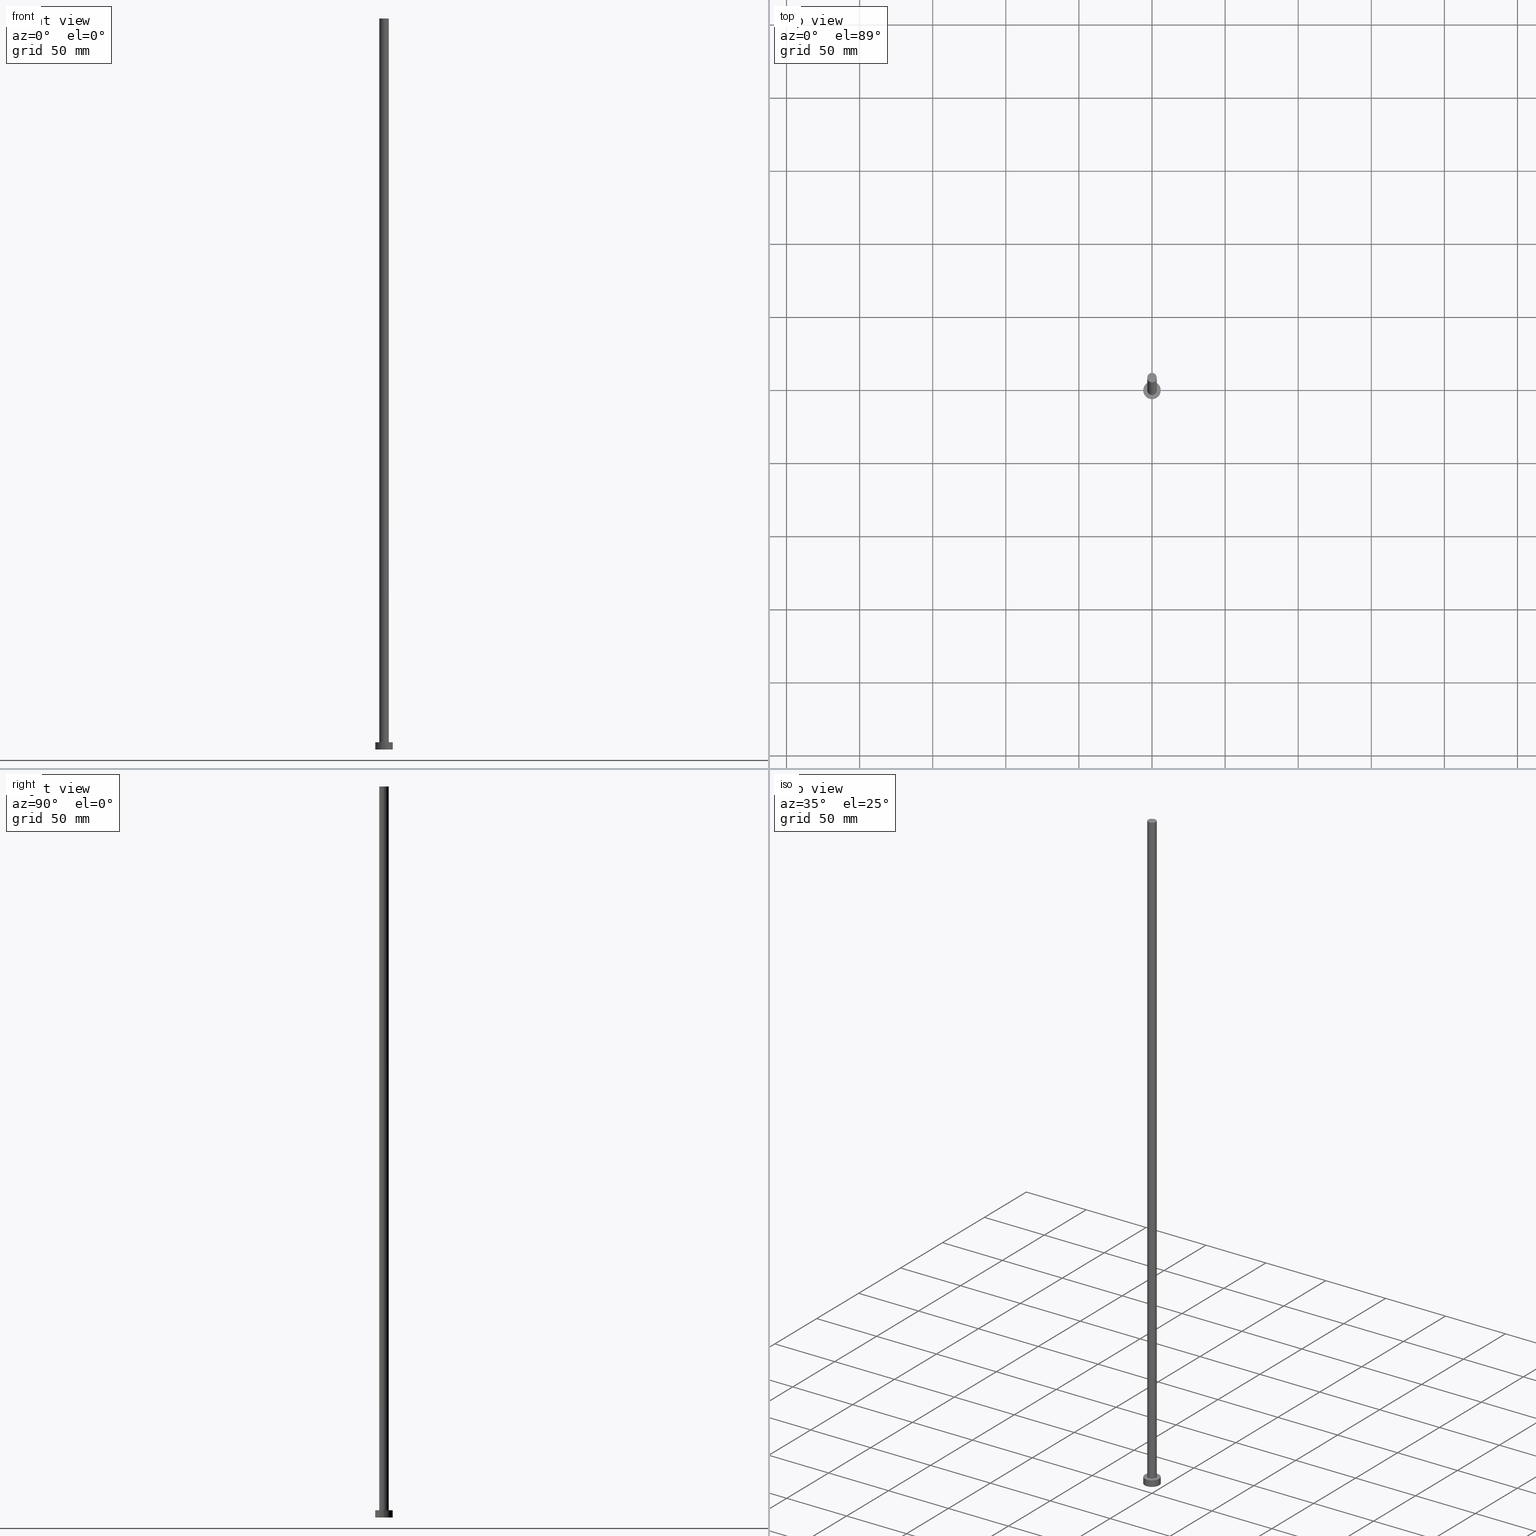
[diagram: canonical four-view strip — front | top / right | iso, engineering-drawing reading convention]
A machine part, canonical four-view strip (front | top / right | iso — engineering-drawing reading convention). The complete STEP part file that produces these views, byte-faithful:
ISO-10303-21;
HEADER;
FILE_DESCRIPTION (( 'STEP AP203' ),
    '1' );
FILE_NAME ('5e20.STEP',
    '2023-02-13T11:47:34',
    ( '' ),
    ( '' ),
    'SwSTEP 2.0',
    'SolidWorks 2019',
    '' );
FILE_SCHEMA (( 'CONFIG_CONTROL_DESIGN' ));
ENDSEC;

DATA;
#1 = ORIENTED_EDGE ( 'NONE', *, *, #48, .T. ) ;
#2 = DIRECTION ( 'NONE',  ( 0.000000000000000000, 0.000000000000000000, 1.000000000000000000 ) ) ;
#3 = VERTEX_POINT ( 'NONE', #56 ) ;
#4 = VERTEX_POINT ( 'NONE', #97 ) ;
#5 = AXIS2_PLACEMENT_3D ( 'NONE', #242, #127, #126 ) ;
#6 = LINE ( 'NONE', #221, #116 ) ;
#7 = CYLINDRICAL_SURFACE ( 'NONE', #249, 6.000000000000000888 ) ;
#8 = CYLINDRICAL_SURFACE ( 'NONE', #5, 6.000000000000000888 ) ;
#9 = CARTESIAN_POINT ( 'NONE',  ( 0.000000000000000000, 0.000000000000000000, 5.000000000000000000 ) ) ;
#10 = CC_DESIGN_DATE_AND_TIME_ASSIGNMENT ( #39, #229, ( #35 ) ) ;
#11 = CIRCLE ( 'NONE', #237, 6.000000000000000888 ) ;
#12 = CC_DESIGN_APPROVAL ( #235, ( #35 ) ) ;
#13 = PERSON_AND_ORGANIZATION ( #72, #113 ) ;
#14 = EDGE_CURVE ( 'NONE', #212, #4, #11, .T. ) ;
#15 = APPROVAL_DATE_TIME ( #55, #85 ) ;
#16 = ORIENTED_EDGE ( 'NONE', *, *, #131, .F. ) ;
#17 = ORIENTED_EDGE ( 'NONE', *, *, #131, .T. ) ;
#18 = AXIS2_PLACEMENT_3D ( 'NONE', #109, #25, #24 ) ;
#19 = ORIENTED_EDGE ( 'NONE', *, *, #48, .F. ) ;
#20 = COORDINATED_UNIVERSAL_TIME_OFFSET ( 1, 0, .AHEAD. ) ;
#21 = EDGE_LOOP ( 'NONE', ( #180, #197 ) ) ;
#22 = DIRECTION ( 'NONE',  ( 1.000000000000000000, 0.000000000000000000, -0.000000000000000000 ) ) ;
#23 = VECTOR ( 'NONE', #172, 1000.000000000000000 ) ;
#24 = DIRECTION ( 'NONE',  ( 1.000000000000000000, 0.000000000000000000, 0.000000000000000000 ) ) ;
#25 = DIRECTION ( 'NONE',  ( 0.000000000000000000, 0.000000000000000000, 1.000000000000000000 ) ) ;
#26 = CC_DESIGN_PERSON_AND_ORGANIZATION_ASSIGNMENT ( #248, #68, ( #75 ) ) ;
#27 = DIRECTION ( 'NONE',  ( 0.000000000000000000, 0.000000000000000000, 1.000000000000000000 ) ) ;
#28 =( LENGTH_UNIT ( ) NAMED_UNIT ( * ) SI_UNIT ( .MILLI., .METRE. ) );
#29 = AXIS2_PLACEMENT_3D ( 'NONE', #149, #204, #240 ) ;
#30 = APPLICATION_PROTOCOL_DEFINITION ( 'international standard', 'config_control_design', 1994, #144 ) ;
#31 = CIRCLE ( 'NONE', #225, 6.000000000000000888 ) ;
#32 = PERSON_AND_ORGANIZATION_ROLE ( 'design_owner' ) ;
#33 = ADVANCED_FACE ( 'NONE', ( #213 ), #161, .T. ) ;
#34 = APPLICATION_CONTEXT ( 'configuration controlled 3d designs of mechanical parts and assemblies' ) ;
#35 = SECURITY_CLASSIFICATION ( '', '', #50 ) ;
#36 = VERTEX_POINT ( 'NONE', #40 ) ;
#37 = VERTEX_POINT ( 'NONE', #103 ) ;
#38 = CC_DESIGN_PERSON_AND_ORGANIZATION_ASSIGNMENT ( #194, #32, ( #166 ) ) ;
#39 = DATE_AND_TIME ( #157, #125 ) ;
#40 = CARTESIAN_POINT ( 'NONE',  ( 3.250000000000000444, 3.980102097228898231E-16, 500.0000000000000000 ) ) ;
#41 = CARTESIAN_POINT ( 'NONE',  ( 0.000000000000000000, 0.000000000000000000, 0.000000000000000000 ) ) ;
#42 = ADVANCED_BREP_SHAPE_REPRESENTATION ( '5e20', ( #217, #53 ), #220 ) ;
#43 = FACE_OUTER_BOUND ( 'NONE', #79, .T. ) ;
#44 = DIRECTION ( 'NONE',  ( -0.000000000000000000, -0.000000000000000000, -1.000000000000000000 ) ) ;
#45 = CC_DESIGN_SECURITY_CLASSIFICATION ( #35, ( #112 ) ) ;
#46 = CARTESIAN_POINT ( 'NONE',  ( 0.000000000000000000, 0.000000000000000000, 500.0000000000000000 ) ) ;
#47 = LINE ( 'NONE', #61, #154 ) ;
#48 = EDGE_CURVE ( 'NONE', #182, #233, #95, .T. ) ;
#49 = APPROVAL_ROLE ( '' ) ;
#50 = SECURITY_CLASSIFICATION_LEVEL ( 'unclassified' ) ;
#51 = COORDINATED_UNIVERSAL_TIME_OFFSET ( 1, 0, .AHEAD. ) ;
#52 = DIRECTION ( 'NONE',  ( 1.000000000000000000, 0.000000000000000000, 0.000000000000000000 ) ) ;
#53 = AXIS2_PLACEMENT_3D ( 'NONE', #227, #224, #250 ) ;
#54 = ORIENTED_EDGE ( 'NONE', *, *, #176, .T. ) ;
#55 = DATE_AND_TIME ( #102, #111 ) ;
#56 = CARTESIAN_POINT ( 'NONE',  ( -3.250000000000000444, 0.000000000000000000, 5.000000000000000000 ) ) ;
#57 = ORIENTED_EDGE ( 'NONE', *, *, #169, .F. ) ;
#58 = CC_DESIGN_APPROVAL ( #85, ( #112 ) ) ;
#59 = ORIENTED_EDGE ( 'NONE', *, *, #108, .F. ) ;
#60 = LINE ( 'NONE', #190, #160 ) ;
#61 = CARTESIAN_POINT ( 'NONE',  ( -6.000000000000000888, 0.000000000000000000, 5.000000000000000000 ) ) ;
#62 = AXIS2_PLACEMENT_3D ( 'NONE', #9, #142, #22 ) ;
#63 = CARTESIAN_POINT ( 'NONE',  ( 0.000000000000000000, 0.000000000000000000, 5.000000000000000000 ) ) ;
#64 = DIRECTION ( 'NONE',  ( 0.000000000000000000, 0.000000000000000000, 1.000000000000000000 ) ) ;
#65 = PRODUCT_DEFINITION_SHAPE ( 'NONE', 'NONE',  #75 ) ;
#66 = CARTESIAN_POINT ( 'NONE',  ( 0.000000000000000000, 0.000000000000000000, 500.0000000000000000 ) ) ;
#67 = EDGE_CURVE ( 'NONE', #37, #36, #145, .T. ) ;
#68 = PERSON_AND_ORGANIZATION_ROLE ( 'creator' ) ;
#69 = MECHANICAL_CONTEXT ( 'NONE', #144, 'mechanical' ) ;
#70 = APPROVAL_DATE_TIME ( #251, #223 ) ;
#71 = APPROVAL_PERSON_ORGANIZATION ( #13, #223, #49 ) ;
#72 = PERSON ( 'NEUR�EN�', 'NEUR�EN�', 'NEUR�EN�', ('NEUR�EN�'), ('NEUR�EN�'), ('NEUR�EN�') ) ;
#73 = DIRECTION ( 'NONE',  ( 1.000000000000000000, 0.000000000000000000, 0.000000000000000000 ) ) ;
#74 = APPROVAL_STATUS ( 'not_yet_approved' ) ;
#75 = PRODUCT_DEFINITION ( 'NEZN�M�', '', #112, #141 ) ;
#76 = CARTESIAN_POINT ( 'NONE',  ( 0.000000000000000000, 0.000000000000000000, 5.000000000000000000 ) ) ;
#77 = AXIS2_PLACEMENT_3D ( 'NONE', #46, #171, #187 ) ;
#78 = ORIENTED_EDGE ( 'NONE', *, *, #155, .F. ) ;
#79 = EDGE_LOOP ( 'NONE', ( #200, #195, #140, #57 ) ) ;
#80 = EDGE_CURVE ( 'NONE', #4, #212, #31, .T. ) ;
#81 = CARTESIAN_POINT ( 'NONE',  ( 0.000000000000000000, 0.000000000000000000, 500.0000000000000000 ) ) ;
#82 = UNCERTAINTY_MEASURE_WITH_UNIT (LENGTH_MEASURE( 1.000000000000000082E-05 ), #28, 'distance_accuracy_value', 'NONE');
#83 = DIRECTION ( 'NONE',  ( 1.000000000000000000, 0.000000000000000000, 0.000000000000000000 ) ) ;
#84 = FACE_OUTER_BOUND ( 'NONE', #21, .T. ) ;
#85 = APPROVAL ( #96, 'NEUR�EN�' ) ;
#86 = FACE_OUTER_BOUND ( 'NONE', #99, .T. ) ;
#87 = APPROVAL_DATE_TIME ( #98, #235 ) ;
#88 = LINE ( 'NONE', #105, #23 ) ;
#89 = CARTESIAN_POINT ( 'NONE',  ( 0.000000000000000000, 0.000000000000000000, 5.000000000000000000 ) ) ;
#90 = APPROVAL_STATUS ( 'not_yet_approved' ) ;
#91 = LOCAL_TIME ( 12, 47, 34.00000000000000000, #151 ) ;
#92 = CALENDAR_DATE ( 2023, 13, 2 ) ;
#93 = ADVANCED_FACE ( 'NONE', ( #132 ), #7, .T. ) ;
#94 =( NAMED_UNIT ( * ) SI_UNIT ( $, .STERADIAN. ) SOLID_ANGLE_UNIT ( ) );
#95 = CIRCLE ( 'NONE', #106, 6.000000000000000888 ) ;
#96 = APPROVAL_STATUS ( 'not_yet_approved' ) ;
#97 = CARTESIAN_POINT ( 'NONE',  ( -6.000000000000000888, 0.000000000000000000, 5.000000000000000000 ) ) ;
#98 = DATE_AND_TIME ( #196, #188 ) ;
#99 = EDGE_LOOP ( 'NONE', ( #19, #115 ) ) ;
#100 = EDGE_LOOP ( 'NONE', ( #234, #159, #54, #1 ) ) ;
#101 = CLOSED_SHELL ( 'NONE', ( #191, #93, #173, #128, #241, #114, #33 ) ) ;
#102 = CALENDAR_DATE ( 2023, 13, 2 ) ;
#103 = CARTESIAN_POINT ( 'NONE',  ( -3.250000000000000444, 0.000000000000000000, 500.0000000000000000 ) ) ;
#104 = DIRECTION ( 'NONE',  ( 0.000000000000000000, 0.000000000000000000, 1.000000000000000000 ) ) ;
#105 = CARTESIAN_POINT ( 'NONE',  ( -3.250000000000000444, 0.000000000000000000, 500.0000000000000000 ) ) ;
#106 = AXIS2_PLACEMENT_3D ( 'NONE', #41, #104, #255 ) ;
#107 = DIRECTION ( 'NONE',  ( 0.000000000000000000, 0.000000000000000000, 1.000000000000000000 ) ) ;
#108 = EDGE_CURVE ( 'NONE', #36, #202, #6, .T. ) ;
#109 = CARTESIAN_POINT ( 'NONE',  ( 0.000000000000000000, 0.000000000000000000, 5.000000000000000000 ) ) ;
#110 = DIRECTION ( 'NONE',  ( 1.000000000000000000, 0.000000000000000000, -0.000000000000000000 ) ) ;
#111 = LOCAL_TIME ( 12, 47, 34.00000000000000000, #20 ) ;
#112 = PRODUCT_DEFINITION_FORMATION_WITH_SPECIFIED_SOURCE ( 'LIBOVOLN�', '', #166, .NOT_KNOWN. ) ;
#113 = ORGANIZATION ( 'NEUR�EN�', 'NEUR�EN�', '' ) ;
#114 = ADVANCED_FACE ( 'NONE', ( #124 ), #203, .T. ) ;
#115 = ORIENTED_EDGE ( 'NONE', *, *, #246, .F. ) ;
#116 = VECTOR ( 'NONE', #167, 1000.000000000000000 ) ;
#117 = PERSON_AND_ORGANIZATION ( #72, #113 ) ;
#118 = ORIENTED_EDGE ( 'NONE', *, *, #67, .T. ) ;
#119 = ORIENTED_EDGE ( 'NONE', *, *, #246, .T. ) ;
#120 = APPROVAL_ROLE ( '' ) ;
#121 = ORIENTED_EDGE ( 'NONE', *, *, #67, .F. ) ;
#122 = EDGE_LOOP ( 'NONE', ( #16, #78 ) ) ;
#123 = CARTESIAN_POINT ( 'NONE',  ( 3.250000000000000444, 3.980102097228898231E-16, 5.000000000000000000 ) ) ;
#124 = FACE_OUTER_BOUND ( 'NONE', #216, .T. ) ;
#125 = LOCAL_TIME ( 12, 47, 34.00000000000000000, #178 ) ;
#126 = DIRECTION ( 'NONE',  ( -1.000000000000000000, 0.000000000000000000, 0.000000000000000000 ) ) ;
#127 = DIRECTION ( 'NONE',  ( -0.000000000000000000, -0.000000000000000000, -1.000000000000000000 ) ) ;
#128 = ADVANCED_FACE ( 'NONE', ( #206, #84 ), #189, .T. ) ;
#129 = DATE_TIME_ROLE ( 'creation_date' ) ;
#130 = PERSON_AND_ORGANIZATION_ROLE ( 'classification_officer' ) ;
#131 = EDGE_CURVE ( 'NONE', #3, #202, #244, .T. ) ;
#132 = FACE_OUTER_BOUND ( 'NONE', #184, .T. ) ;
#133 = CIRCLE ( 'NONE', #253, 3.250000000000000444 ) ;
#134 = EDGE_LOOP ( 'NONE', ( #118, #199 ) ) ;
#135 = DIRECTION ( 'NONE',  ( 0.000000000000000000, 0.000000000000000000, 1.000000000000000000 ) ) ;
#136 = EDGE_CURVE ( 'NONE', #36, #37, #210, .T. ) ;
#137 = PERSON_AND_ORGANIZATION ( #72, #113 ) ;
#138 = DIRECTION ( 'NONE',  ( 1.000000000000000000, 0.000000000000000000, 0.000000000000000000 ) ) ;
#139 = AXIS2_PLACEMENT_3D ( 'NONE', #66, #192, #83 ) ;
#140 = ORIENTED_EDGE ( 'NONE', *, *, #155, .T. ) ;
#141 = DESIGN_CONTEXT ( 'detailed design', #34, 'design' ) ;
#142 = DIRECTION ( 'NONE',  ( 0.000000000000000000, 0.000000000000000000, 1.000000000000000000 ) ) ;
#143 = DIRECTION ( 'NONE',  ( -0.000000000000000000, -0.000000000000000000, -1.000000000000000000 ) ) ;
#144 = APPLICATION_CONTEXT ( 'configuration controlled 3d designs of mechanical parts and assemblies' ) ;
#145 = CIRCLE ( 'NONE', #183, 3.250000000000000444 ) ;
#146 = CARTESIAN_POINT ( 'NONE',  ( 0.000000000000000000, 0.000000000000000000, 0.000000000000000000 ) ) ;
#147 = EDGE_CURVE ( 'NONE', #212, #233, #60, .T. ) ;
#148 = DIRECTION ( 'NONE',  ( -1.000000000000000000, 0.000000000000000000, 0.000000000000000000 ) ) ;
#149 = CARTESIAN_POINT ( 'NONE',  ( 0.000000000000000000, 0.000000000000000000, 500.0000000000000000 ) ) ;
#150 = AXIS2_PLACEMENT_3D ( 'NONE', #245, #64, #222 ) ;
#151 = COORDINATED_UNIVERSAL_TIME_OFFSET ( 1, 0, .AHEAD. ) ;
#152 = CC_DESIGN_DATE_AND_TIME_ASSIGNMENT ( #153, #129, ( #75 ) ) ;
#153 = DATE_AND_TIME ( #252, #91 ) ;
#154 = VECTOR ( 'NONE', #143, 1000.000000000000000 ) ;
#155 = EDGE_CURVE ( 'NONE', #202, #3, #133, .T. ) ;
#156 = PERSON_AND_ORGANIZATION ( #72, #113 ) ;
#157 = CALENDAR_DATE ( 2023, 13, 2 ) ;
#158 = CARTESIAN_POINT ( 'NONE',  ( 0.000000000000000000, 0.000000000000000000, 5.000000000000000000 ) ) ;
#159 = ORIENTED_EDGE ( 'NONE', *, *, #80, .F. ) ;
#160 = VECTOR ( 'NONE', #44, 1000.000000000000000 ) ;
#161 = PLANE ( 'NONE',  #164 ) ;
#162 = ORIENTED_EDGE ( 'NONE', *, *, #147, .T. ) ;
#163 = DIRECTION ( 'NONE',  ( 0.000000000000000000, 0.000000000000000000, 1.000000000000000000 ) ) ;
#164 = AXIS2_PLACEMENT_3D ( 'NONE', #179, #135, #185 ) ;
#165 = CARTESIAN_POINT ( 'NONE',  ( 6.000000000000000888, 7.347880794884120722E-16, 0.000000000000000000 ) ) ;
#166 = PRODUCT ( '5e20', '5e20', '', ( #69 ) ) ;
#167 = DIRECTION ( 'NONE',  ( -0.000000000000000000, -0.000000000000000000, -1.000000000000000000 ) ) ;
#168 = PLANE ( 'NONE',  #193 ) ;
#169 = EDGE_CURVE ( 'NONE', #37, #3, #88, .T. ) ;
#170 = CIRCLE ( 'NONE', #150, 6.000000000000000888 ) ;
#171 = DIRECTION ( 'NONE',  ( -0.000000000000000000, -0.000000000000000000, -1.000000000000000000 ) ) ;
#172 = DIRECTION ( 'NONE',  ( -0.000000000000000000, -0.000000000000000000, -1.000000000000000000 ) ) ;
#173 = ADVANCED_FACE ( 'NONE', ( #218 ), #8, .T. ) ;
#174 = COORDINATED_UNIVERSAL_TIME_OFFSET ( 1, 0, .AHEAD. ) ;
#175 = APPLICATION_PROTOCOL_DEFINITION ( 'international standard', 'config_control_design', 1994, #34 ) ;
#176 = EDGE_CURVE ( 'NONE', #4, #182, #47, .T. ) ;
#177 = CC_DESIGN_APPROVAL ( #223, ( #75 ) ) ;
#178 = COORDINATED_UNIVERSAL_TIME_OFFSET ( 1, 0, .AHEAD. ) ;
#179 = CARTESIAN_POINT ( 'NONE',  ( 0.000000000000000000, 0.000000000000000000, 500.0000000000000000 ) ) ;
#180 = ORIENTED_EDGE ( 'NONE', *, *, #80, .T. ) ;
#181 = CC_DESIGN_PERSON_AND_ORGANIZATION_ASSIGNMENT ( #137, #228, ( #112 ) ) ;
#182 = VERTEX_POINT ( 'NONE', #247 ) ;
#183 = AXIS2_PLACEMENT_3D ( 'NONE', #81, #163, #73 ) ;
#184 = EDGE_LOOP ( 'NONE', ( #238, #162, #119, #236 ) ) ;
#185 = DIRECTION ( 'NONE',  ( 1.000000000000000000, 0.000000000000000000, -0.000000000000000000 ) ) ;
#186 = CC_DESIGN_PERSON_AND_ORGANIZATION_ASSIGNMENT ( #156, #198, ( #112 ) ) ;
#187 = DIRECTION ( 'NONE',  ( -1.000000000000000000, 0.000000000000000000, 0.000000000000000000 ) ) ;
#188 = LOCAL_TIME ( 12, 47, 34.00000000000000000, #51 ) ;
#189 = PLANE ( 'NONE',  #62 ) ;
#190 = CARTESIAN_POINT ( 'NONE',  ( 6.000000000000000888, 7.347880794884120722E-16, 5.000000000000000000 ) ) ;
#191 = ADVANCED_FACE ( 'NONE', ( #43 ), #219, .T. ) ;
#192 = DIRECTION ( 'NONE',  ( 0.000000000000000000, 0.000000000000000000, 1.000000000000000000 ) ) ;
#193 = AXIS2_PLACEMENT_3D ( 'NONE', #146, #27, #110 ) ;
#194 = PERSON_AND_ORGANIZATION ( #72, #113 ) ;
#195 = ORIENTED_EDGE ( 'NONE', *, *, #108, .T. ) ;
#196 = CALENDAR_DATE ( 2023, 13, 2 ) ;
#197 = ORIENTED_EDGE ( 'NONE', *, *, #14, .T. ) ;
#198 = PERSON_AND_ORGANIZATION_ROLE ( 'creator' ) ;
#199 = ORIENTED_EDGE ( 'NONE', *, *, #136, .T. ) ;
#200 = ORIENTED_EDGE ( 'NONE', *, *, #136, .F. ) ;
#201 = PRODUCT_RELATED_PRODUCT_CATEGORY ( 'detail', '', ( #166 ) ) ;
#202 = VERTEX_POINT ( 'NONE', #123 ) ;
#203 = CYLINDRICAL_SURFACE ( 'NONE', #29, 3.250000000000000444 ) ;
#204 = DIRECTION ( 'NONE',  ( -0.000000000000000000, -0.000000000000000000, -1.000000000000000000 ) ) ;
#205 = CARTESIAN_POINT ( 'NONE',  ( 6.000000000000000888, 7.347880794884120722E-16, 5.000000000000000000 ) ) ;
#206 = FACE_BOUND ( 'NONE', #122, .T. ) ;
#207 = DIRECTION ( 'NONE',  ( 1.000000000000000000, 0.000000000000000000, 0.000000000000000000 ) ) ;
#208 = APPROVAL_PERSON_ORGANIZATION ( #117, #235, #254 ) ;
#209 =( NAMED_UNIT ( * ) PLANE_ANGLE_UNIT ( ) SI_UNIT ( $, .RADIAN. ) );
#210 = CIRCLE ( 'NONE', #139, 3.250000000000000444 ) ;
#211 = ORIENTED_EDGE ( 'NONE', *, *, #169, .T. ) ;
#212 = VERTEX_POINT ( 'NONE', #205 ) ;
#213 = FACE_OUTER_BOUND ( 'NONE', #134, .T. ) ;
#214 = APPROVAL_PERSON_ORGANIZATION ( #226, #85, #120 ) ;
#215 = LOCAL_TIME ( 12, 47, 34.00000000000000000, #174 ) ;
#216 = EDGE_LOOP ( 'NONE', ( #59, #121, #211, #17 ) ) ;
#217 = MANIFOLD_SOLID_BREP ( 'P�idat vysunut�m3', #101 ) ;
#218 = FACE_OUTER_BOUND ( 'NONE', #100, .T. ) ;
#219 = CYLINDRICAL_SURFACE ( 'NONE', #77, 3.250000000000000444 ) ;
#220 =( GEOMETRIC_REPRESENTATION_CONTEXT ( 3 ) GLOBAL_UNCERTAINTY_ASSIGNED_CONTEXT ( ( #82 ) ) GLOBAL_UNIT_ASSIGNED_CONTEXT ( ( #28, #209, #94 ) ) REPRESENTATION_CONTEXT ( 'NONE', 'WORKASPACE' ) );
#221 = CARTESIAN_POINT ( 'NONE',  ( 3.250000000000000444, 3.980102097228898231E-16, 500.0000000000000000 ) ) ;
#222 = DIRECTION ( 'NONE',  ( 1.000000000000000000, 0.000000000000000000, 0.000000000000000000 ) ) ;
#223 = APPROVAL ( #90, 'NEUR�EN�' ) ;
#224 = DIRECTION ( 'NONE',  ( 0.000000000000000000, 0.000000000000000000, 1.000000000000000000 ) ) ;
#225 = AXIS2_PLACEMENT_3D ( 'NONE', #158, #231, #52 ) ;
#226 = PERSON_AND_ORGANIZATION ( #72, #113 ) ;
#227 = CARTESIAN_POINT ( 'NONE',  ( 0.000000000000000000, 0.000000000000000000, 0.000000000000000000 ) ) ;
#228 = PERSON_AND_ORGANIZATION_ROLE ( 'design_supplier' ) ;
#229 = DATE_TIME_ROLE ( 'classification_date' ) ;
#230 = CC_DESIGN_PERSON_AND_ORGANIZATION_ASSIGNMENT ( #232, #130, ( #35 ) ) ;
#231 = DIRECTION ( 'NONE',  ( 0.000000000000000000, 0.000000000000000000, 1.000000000000000000 ) ) ;
#232 = PERSON_AND_ORGANIZATION ( #72, #113 ) ;
#233 = VERTEX_POINT ( 'NONE', #165 ) ;
#234 = ORIENTED_EDGE ( 'NONE', *, *, #147, .F. ) ;
#235 = APPROVAL ( #74, 'NEUR�EN�' ) ;
#236 = ORIENTED_EDGE ( 'NONE', *, *, #176, .F. ) ;
#237 = AXIS2_PLACEMENT_3D ( 'NONE', #76, #2, #138 ) ;
#238 = ORIENTED_EDGE ( 'NONE', *, *, #14, .F. ) ;
#239 = SHAPE_DEFINITION_REPRESENTATION ( #65, #42 ) ;
#240 = DIRECTION ( 'NONE',  ( -1.000000000000000000, 0.000000000000000000, 0.000000000000000000 ) ) ;
#241 = ADVANCED_FACE ( 'NONE', ( #86 ), #168, .F. ) ;
#242 = CARTESIAN_POINT ( 'NONE',  ( 0.000000000000000000, 0.000000000000000000, 5.000000000000000000 ) ) ;
#243 = DIRECTION ( 'NONE',  ( -0.000000000000000000, -0.000000000000000000, -1.000000000000000000 ) ) ;
#244 = CIRCLE ( 'NONE', #18, 3.250000000000000444 ) ;
#245 = CARTESIAN_POINT ( 'NONE',  ( 0.000000000000000000, 0.000000000000000000, 0.000000000000000000 ) ) ;
#246 = EDGE_CURVE ( 'NONE', #233, #182, #170, .T. ) ;
#247 = CARTESIAN_POINT ( 'NONE',  ( -6.000000000000000888, 0.000000000000000000, 0.000000000000000000 ) ) ;
#248 = PERSON_AND_ORGANIZATION ( #72, #113 ) ;
#249 = AXIS2_PLACEMENT_3D ( 'NONE', #89, #243, #148 ) ;
#250 = DIRECTION ( 'NONE',  ( 1.000000000000000000, 0.000000000000000000, 0.000000000000000000 ) ) ;
#251 = DATE_AND_TIME ( #92, #215 ) ;
#252 = CALENDAR_DATE ( 2023, 13, 2 ) ;
#253 = AXIS2_PLACEMENT_3D ( 'NONE', #63, #107, #207 ) ;
#254 = APPROVAL_ROLE ( '' ) ;
#255 = DIRECTION ( 'NONE',  ( 1.000000000000000000, 0.000000000000000000, 0.000000000000000000 ) ) ;
ENDSEC;
END-ISO-10303-21;
